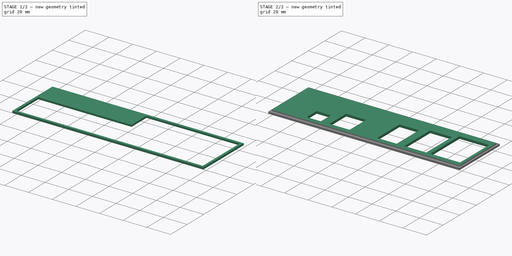
[diagram: build sequence overview — one tinted view per stage of 2, left to right]
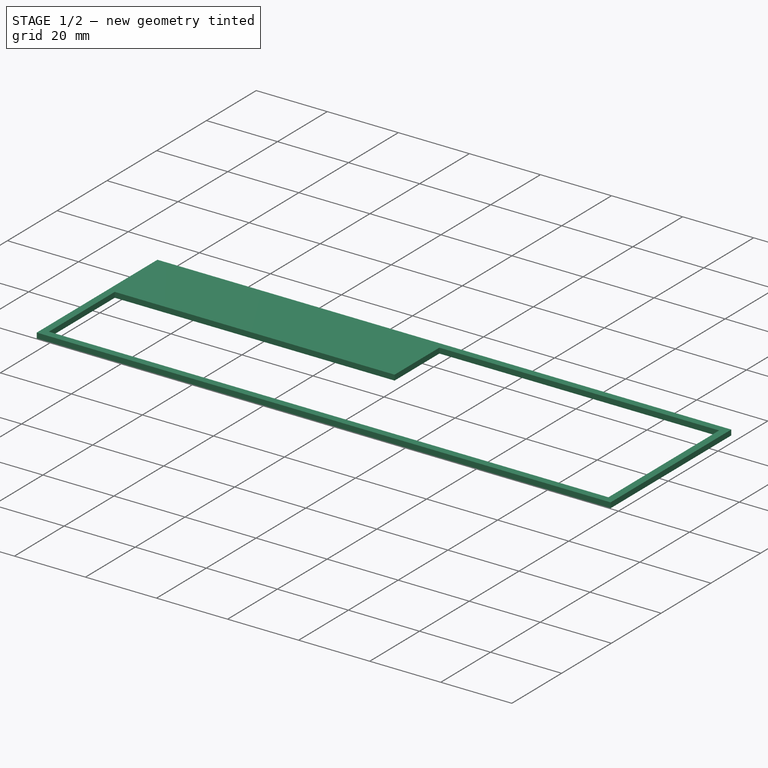
[diagram: stage 1 of 2 — iso view after this stage's code; geometry added in this stage tinted green]
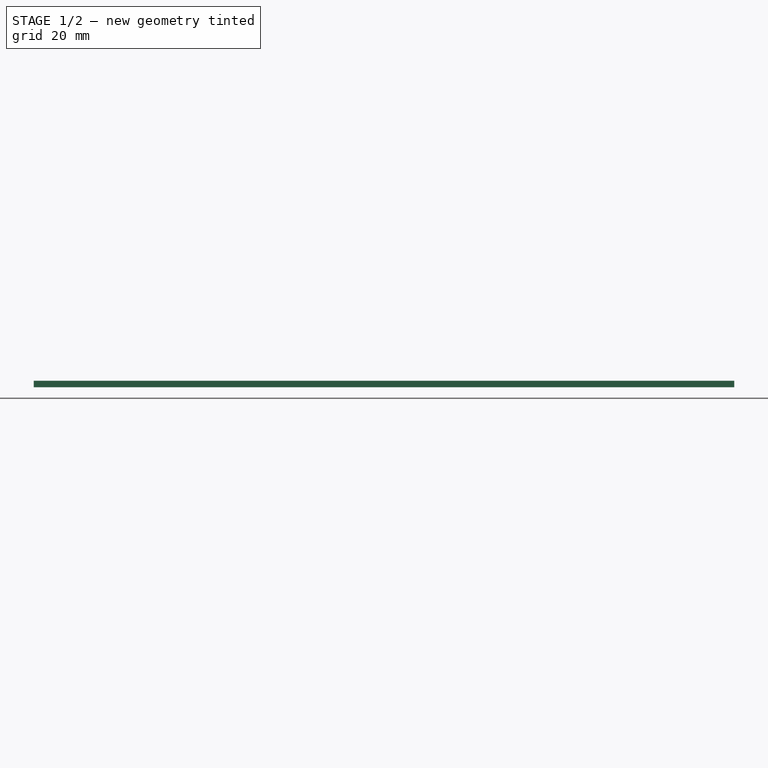
[diagram: stage 1 of 2 — front view after this stage's code; geometry added in this stage tinted green]
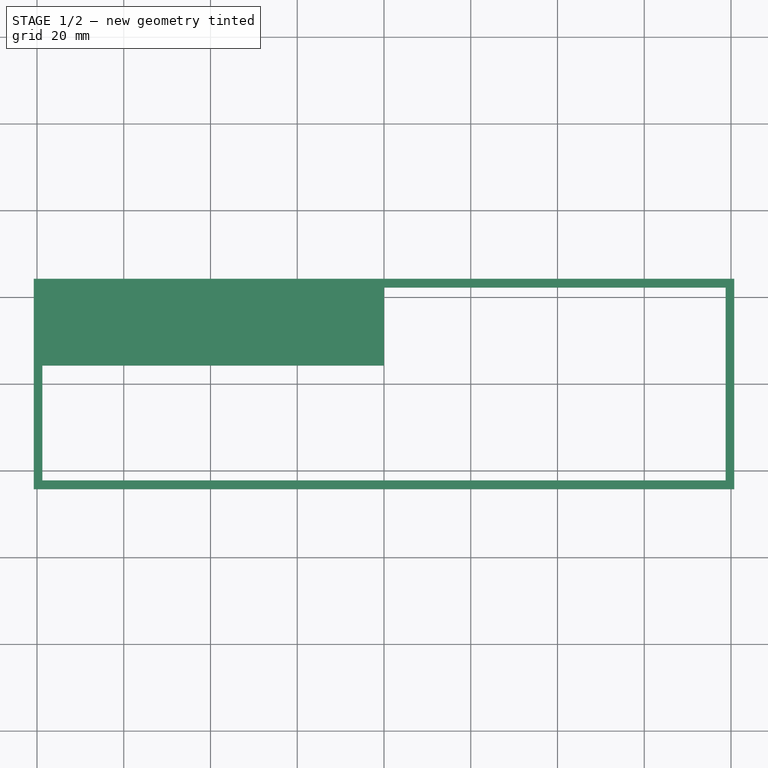
[diagram: stage 1 of 2 — top view after this stage's code; geometry added in this stage tinted green]
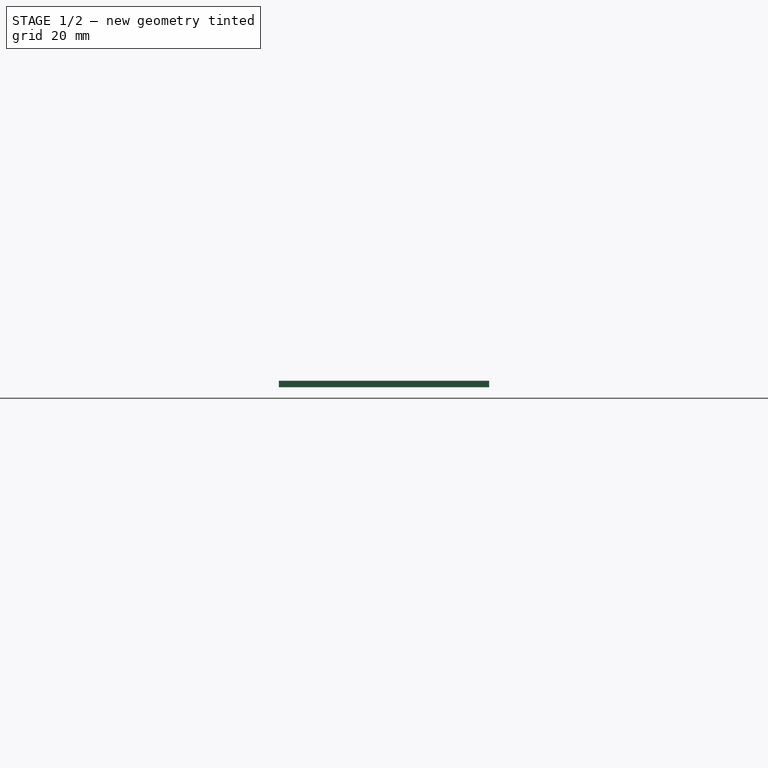
[diagram: stage 1 of 2 — right view after this stage's code; geometry added in this stage tinted green]
FCSTD DOCUMENT  (FreeCAD 0.14R3702 (Git))
Label: hp pegatron IPMTB-TK TRUCKEE atx shield
License: CC-BY 3.0
LicenseURL: http://creativecommons.org/licenses/by/3.0/
objects: Sketcher::SketchObject×2, PartDesign::Pad×2
note: 6 computed .brp shape members not serialized (recipe doc carries the construction recipe); baked Part::Feature solids carry a one-line shape summary decoded from their .brp

FEATURE [Sketcher::SketchObject] Sketch001
  sketch-geometry (12):
    g0: LineSegment StartX=-80.75 StartY=24.25 StartZ=0 EndX=80.75 EndY=24.25 EndZ=0
    g1: LineSegment StartX=80.75 StartY=24.25 StartZ=0 EndX=80.75 EndY=-24.25 EndZ=0
    g2: LineSegment StartX=80.75 StartY=-24.25 StartZ=0 EndX=-80.75 EndY=-24.25 EndZ=0
    g3: LineSegment StartX=-80.75 StartY=-24.25 StartZ=0 EndX=-80.75 EndY=24.25 EndZ=0
    g4: LineSegment StartX=-78.75 StartY=22.25 StartZ=0 EndX=78.75 EndY=22.25 EndZ=0
    g5: LineSegment StartX=78.75 StartY=22.25 StartZ=0 EndX=78.75 EndY=-22.25 EndZ=0
    g6: LineSegment StartX=78.75 StartY=-22.25 StartZ=0 EndX=-78.75 EndY=-22.25 EndZ=0
    g7: LineSegment StartX=-78.75 StartY=-22.25 StartZ=0 EndX=-78.75 EndY=22.25 EndZ=0
    g8: LineSegment StartX=-78.75 StartY=22.25 StartZ=0 EndX=0 EndY=22.25 EndZ=0
    g9: LineSegment StartX=0 StartY=22.25 StartZ=0 EndX=0 EndY=4.25 EndZ=0
    g10: LineSegment StartX=0 StartY=4.25 StartZ=0 EndX=-78.75 EndY=4.25 EndZ=0
    g11: LineSegment StartX=-78.75 StartY=4.25 StartZ=0 EndX=-78.75 EndY=22.25 EndZ=0
  constraints (35):
    c: Coincident(g0,g1)
    c: Coincident(g1,g2)
    c: Coincident(g2,g3)
    c: Coincident(g3,g0)
    c: Horizontal(g0)
    c: Horizontal(g2)
    c: Vertical(g1)
    c: Vertical(g3)
    c: DistanceX(g0) = 161.5
    c: DistanceY(g3) = 48.5
    c: Symmetric(g2,g1,g-2)
    c: Symmetric(g1,g0,g-1)
    c: Coincident(g4,g5)
    c: Coincident(g5,g6)
    c: Coincident(g6,g7)
    c: Coincident(g7,g4)
    c: Horizontal(g4)
    c: Horizontal(g6)
    c: Vertical(g5)
    c: Vertical(g7)
    c: DistanceY(g7) = 44.5
    c: DistanceX(g6) = -157.5
    c: Symmetric(g6,g4,g-1)
    c: Symmetric(g6,g5,g-2)
    c: Coincident(g8,g9)
    c: Coincident(g9,g10)
    c: Coincident(g10,g11)
    c: Coincident(g11,g8)
    c: Horizontal(g8)
    c: Horizontal(g10)
    c: Vertical(g9)
    c: Vertical(g11)
    c: Coincident(g8,g4)
    c: PointOnObject(g9,g-2)
    c: DistanceY(g8,g9) = -18
FEATURE [PartDesign::Pad] Pad001
  Length = 1.5
  Length2 = 100
  Sketch = -> Sketch001
  Type = 0
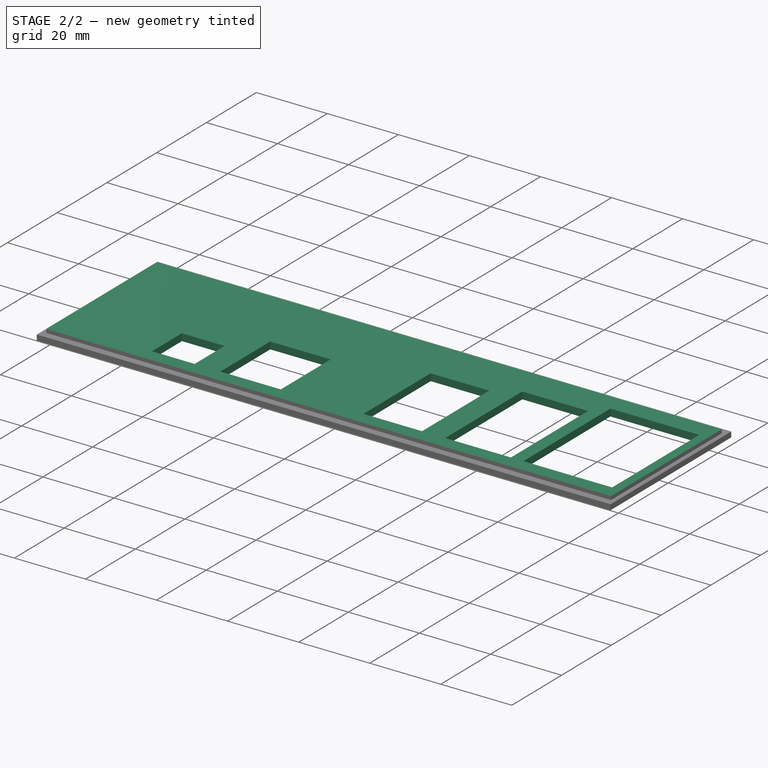
[diagram: stage 2 of 2 — iso view after this stage's code; geometry added in this stage tinted green]
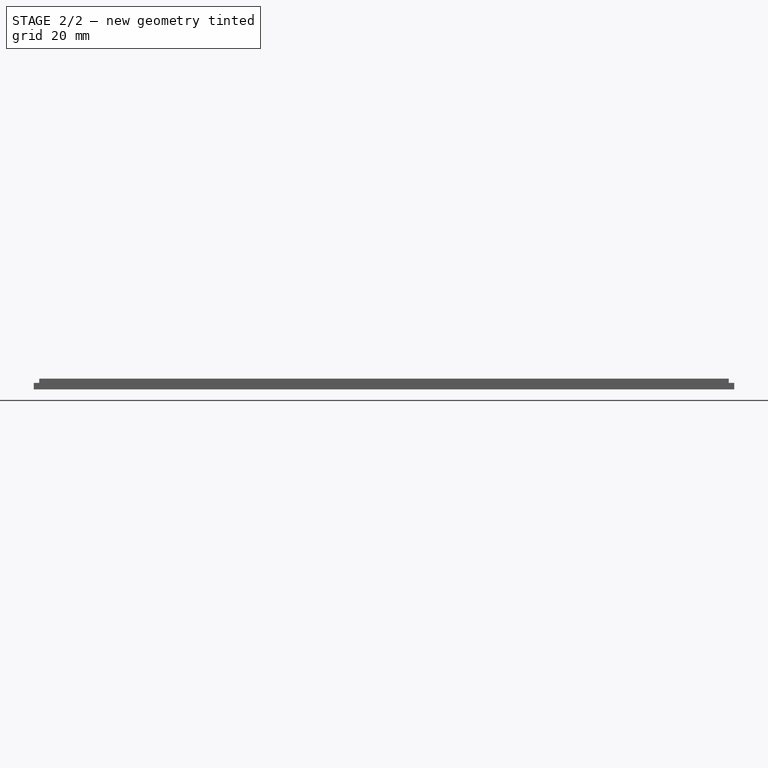
[diagram: stage 2 of 2 — front view after this stage's code; geometry added in this stage tinted green]
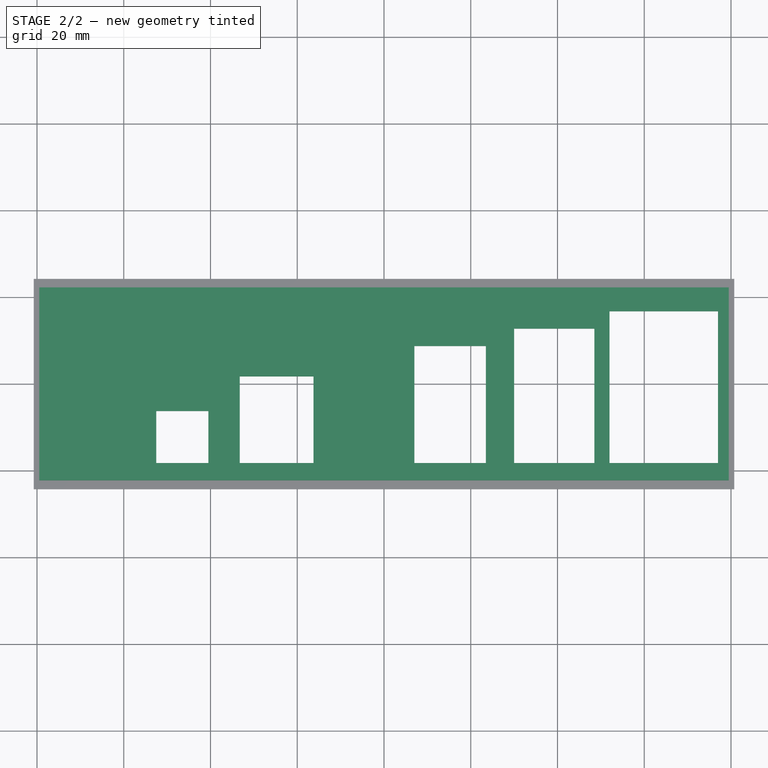
[diagram: stage 2 of 2 — top view after this stage's code; geometry added in this stage tinted green]
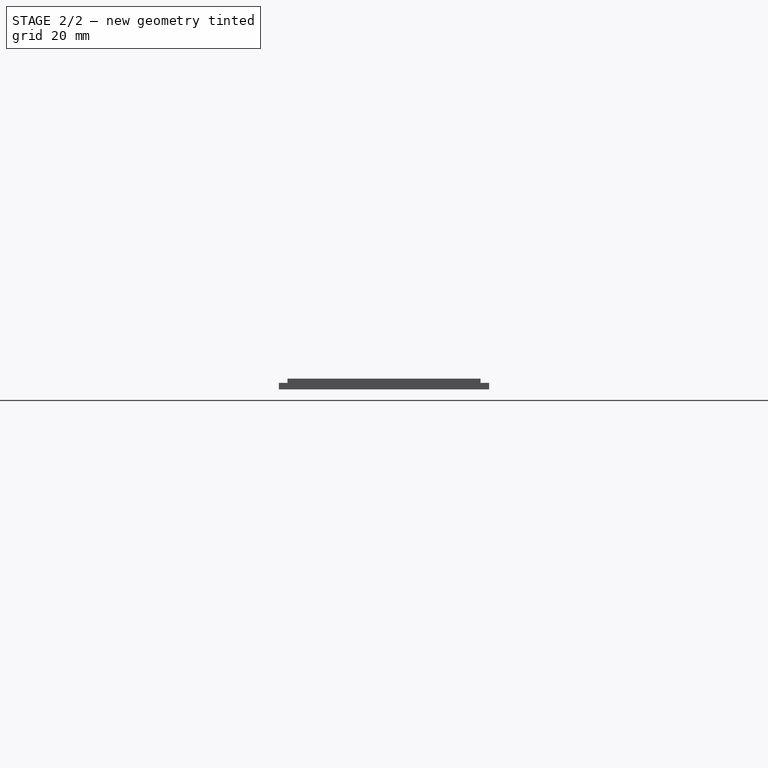
[diagram: stage 2 of 2 — right view after this stage's code; geometry added in this stage tinted green]
FEATURE [Sketcher::SketchObject] Sketch
  Placement = pos=(0,0,0.5) rot=(0,0,1;0rad)
  sketch-geometry (25):
    g0: LineSegment StartX=-79.5 StartY=22.25 StartZ=0 EndX=79.5 EndY=22.25 EndZ=0
    g1: LineSegment StartX=79.5 StartY=22.25 StartZ=0 EndX=79.5 EndY=-22.25 EndZ=0
    g2: LineSegment StartX=79.5 StartY=-22.25 StartZ=0 EndX=-79.5 EndY=-22.25 EndZ=0
    g3: LineSegment StartX=-79.5 StartY=-22.25 StartZ=0 EndX=-79.5 EndY=22.25 EndZ=0
    g4: LineSegment [constr] StartX=-79.5 StartY=-18.25 StartZ=0 EndX=79.5 EndY=-18.25 EndZ=0
    g5: LineSegment StartX=77 StartY=-18.25 StartZ=0 EndX=52 EndY=-18.25 EndZ=0
    g6: LineSegment StartX=52 StartY=-18.25 StartZ=0 EndX=52 EndY=16.75 EndZ=0
    g7: LineSegment StartX=52 StartY=16.75 StartZ=0 EndX=77 EndY=16.75 EndZ=0
    g8: LineSegment StartX=77 StartY=16.75 StartZ=0 EndX=77 EndY=-18.25 EndZ=0
    g9: LineSegment StartX=48.5 StartY=-18.25 StartZ=0 EndX=30 EndY=-18.25 EndZ=0
    g10: LineSegment StartX=30 StartY=-18.25 StartZ=0 EndX=30 EndY=12.75 EndZ=0
    g11: LineSegment StartX=30 StartY=12.75 StartZ=0 EndX=48.5 EndY=12.75 EndZ=0
    g12: LineSegment StartX=48.5 StartY=12.75 StartZ=0 EndX=48.5 EndY=-18.25 EndZ=0
    g13: LineSegment StartX=23.5 StartY=-18.25 StartZ=0 EndX=7 EndY=-18.25 EndZ=0
    g14: LineSegment StartX=7 StartY=-18.25 StartZ=0 EndX=7 EndY=8.75 EndZ=0
    g15: LineSegment StartX=7 StartY=8.75 StartZ=0 EndX=23.5 EndY=8.75 EndZ=0
    g16: LineSegment StartX=23.5 StartY=8.75 StartZ=0 EndX=23.5 EndY=-18.25 EndZ=0
    g17: LineSegment StartX=-16.25 StartY=-18.25 StartZ=0 EndX=-33.25 EndY=-18.25 EndZ=0
    g18: LineSegment StartX=-33.25 StartY=-18.25 StartZ=0 EndX=-33.25 EndY=1.75 EndZ=0
    g19: LineSegment StartX=-33.25 StartY=1.75 StartZ=0 EndX=-16.25 EndY=1.75 EndZ=0
    g20: LineSegment StartX=-16.25 StartY=1.75 StartZ=0 EndX=-16.25 EndY=-18.25 EndZ=0
    g21: LineSegment StartX=-40.5 StartY=-18.25 StartZ=0 EndX=-52.5 EndY=-18.25 EndZ=0
    g22: LineSegment StartX=-52.5 StartY=-18.25 StartZ=0 EndX=-52.5 EndY=-6.25 EndZ=0
    g23: LineSegment StartX=-52.5 StartY=-6.25 StartZ=0 EndX=-40.5 EndY=-6.25 EndZ=0
    g24: LineSegment StartX=-40.5 StartY=-6.25 StartZ=0 EndX=-40.5 EndY=-18.25 EndZ=0
  constraints (76):
    c: Coincident(g0,g1)
    c: Coincident(g1,g2)
    c: Coincident(g2,g3)
    c: Coincident(g3,g0)
    c: Horizontal(g0)
    c: Horizontal(g2)
    c: Vertical(g1)
    c: Vertical(g3)
    c: DistanceX(g2) = -159
    c: DistanceY(g3) = 44.5
    c: Symmetric(g1,g2,g-2)
    c: Symmetric(g0,g1,g-1)
    c: PointOnObject(g4,g3)
    c: PointOnObject(g4,g1)
    c: Horizontal(g4)
    c: DistanceY(g4,g2) = -4
    c: Coincident(g5,g6)
    c: Coincident(g6,g7)
    c: Coincident(g7,g8)
    c: Coincident(g8,g5)
    c: Horizontal(g5)
    c: Horizontal(g7)
    c: Vertical(g6)
    c: Vertical(g8)
    c: PointOnObject(g5,g4)
    c: DistanceX(g7) = 25
    c: DistanceX(g5,g4) = 2.5
    c: DistanceY(g6) = 35
    c: Coincident(g9,g10)
    c: Coincident(g10,g11)
    c: Coincident(g11,g12)
    c: Coincident(g12,g9)
    c: Horizontal(g9)
    c: Horizontal(g11)
    c: Vertical(g10)
    c: Vertical(g12)
    c: PointOnObject(g9,g4)
    c: DistanceX(g11) = 18.5
    c: DistanceY(g10) = 31
    c: DistanceX(g9,g4) = 31
    c: Coincident(g13,g14)
    c: Coincident(g14,g15)
    c: Coincident(g15,g16)
    c: Coincident(g16,g13)
    c: Horizontal(g13)
    c: Horizontal(g15)
    c: Vertical(g14)
    c: Vertical(g16)
    c: PointOnObject(g13,g4)
    c: DistanceX(g15) = 16.5
    c: DistanceY(g16) = -27
    c: DistanceX(g13,g4) = 56
    c: Coincident(g17,g18)
    c: Coincident(g18,g19)
    c: Coincident(g19,g20)
    c: Coincident(g20,g17)
    c: Horizontal(g17)
    c: Horizontal(g19)
    c: Vertical(g18)
    c: Vertical(g20)
    c: PointOnObject(g17,g4)
    c: DistanceX(g19) = 17
    c: DistanceY(g20) = -20
    c: DistanceX(g17,g4) = 95.75
    c: Coincident(g21,g22)
    c: Coincident(g22,g23)
    c: Coincident(g23,g24)
    c: Coincident(g24,g21)
    c: Horizontal(g21)
    c: Horizontal(g23)
    c: Vertical(g22)
    c: Vertical(g24)
    c: PointOnObject(g21,g4)
    c: DistanceX(g23) = 12
    c: DistanceY(g24) = -12
    c: DistanceX(g21,g4) = 120
FEATURE [PartDesign::Pad] Pad
  Length = 2
  Length2 = 100
  Placement = pos=(0,0,0.5) rot=(0,0,1;0rad)
  Sketch = -> Sketch
  Type = 0
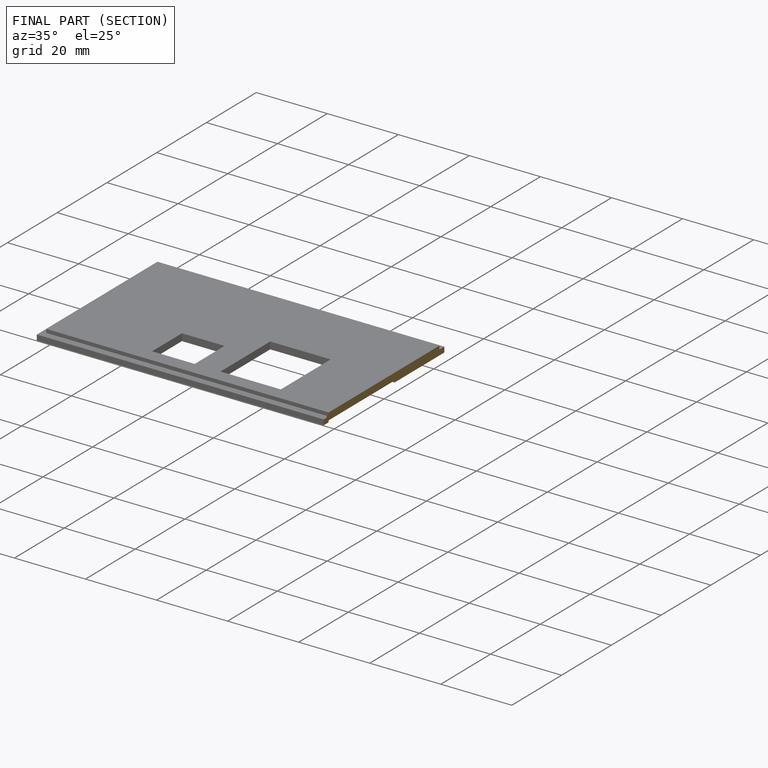
[diagram: finished part — half-section view (interior)]
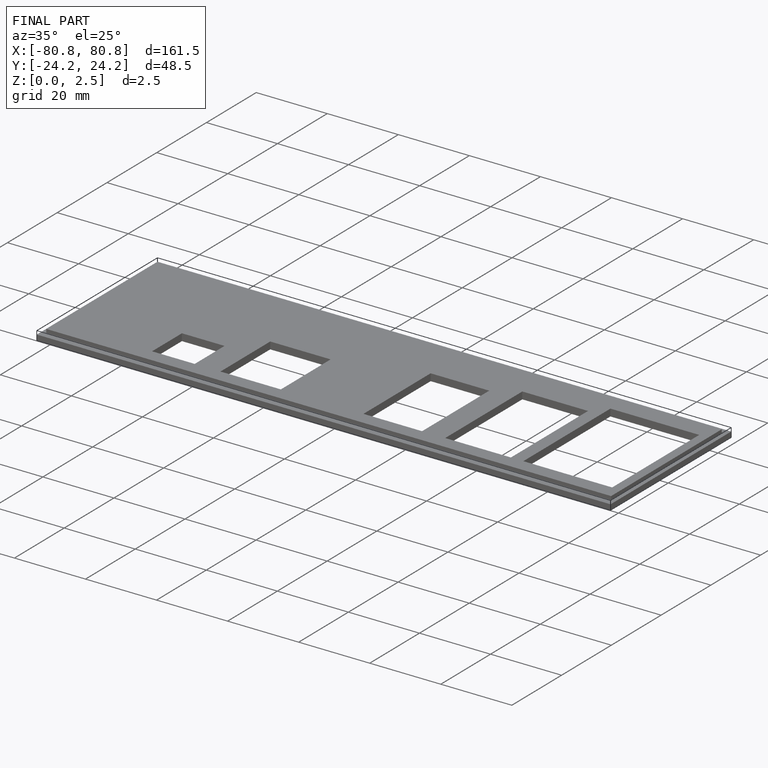
[diagram: finished part — iso view with bounding-box wireframe]
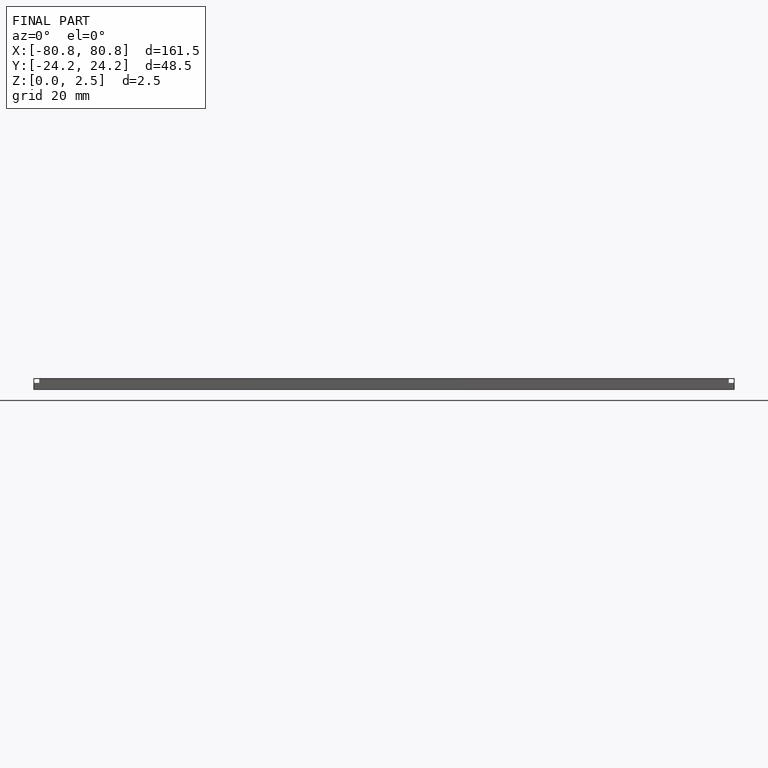
[diagram: finished part — front view with bounding-box wireframe]
